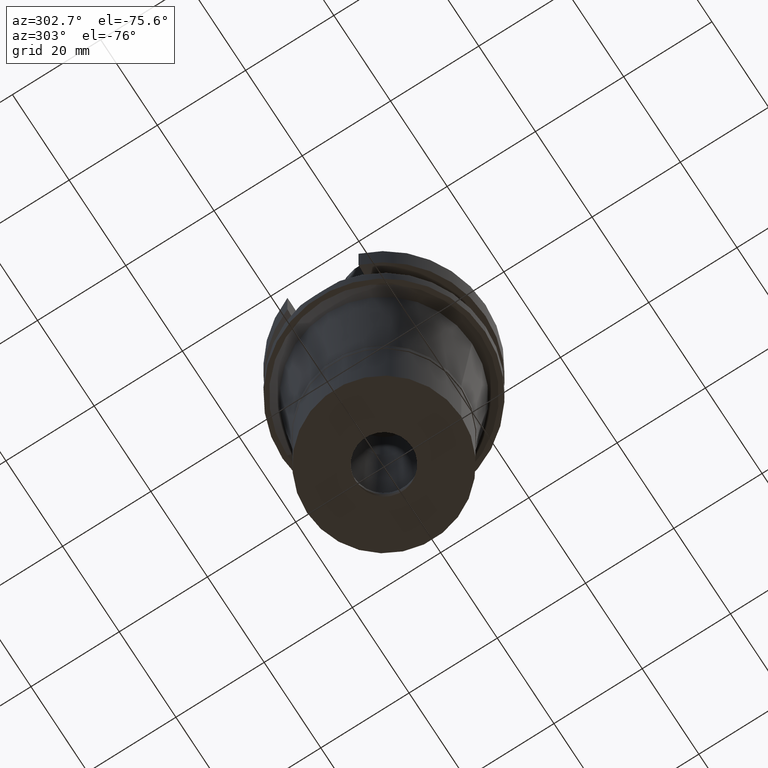
[diagram: clean part render]
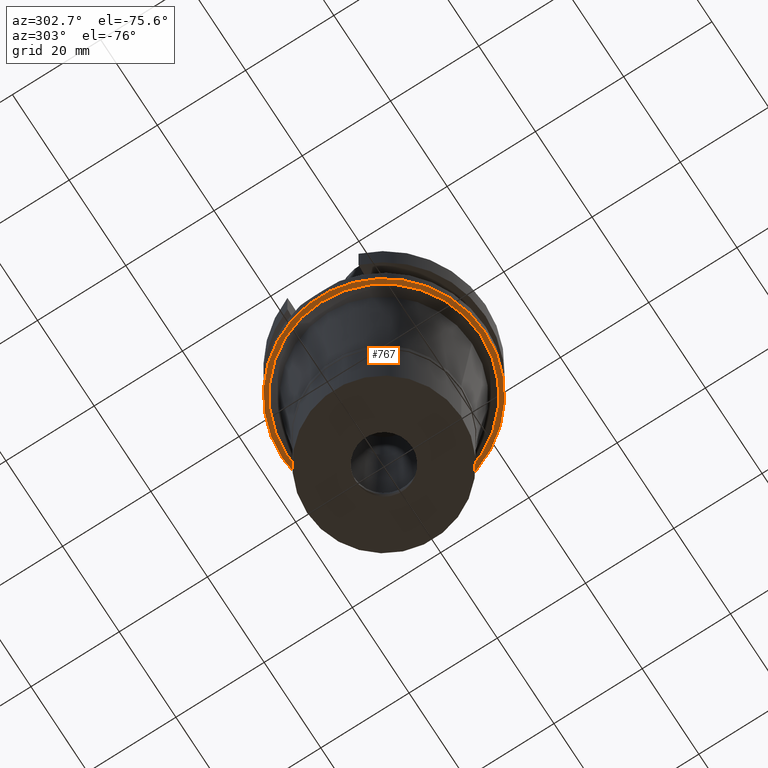
[diagram: same view with one face highlighted and labeled with its STEP entity id]
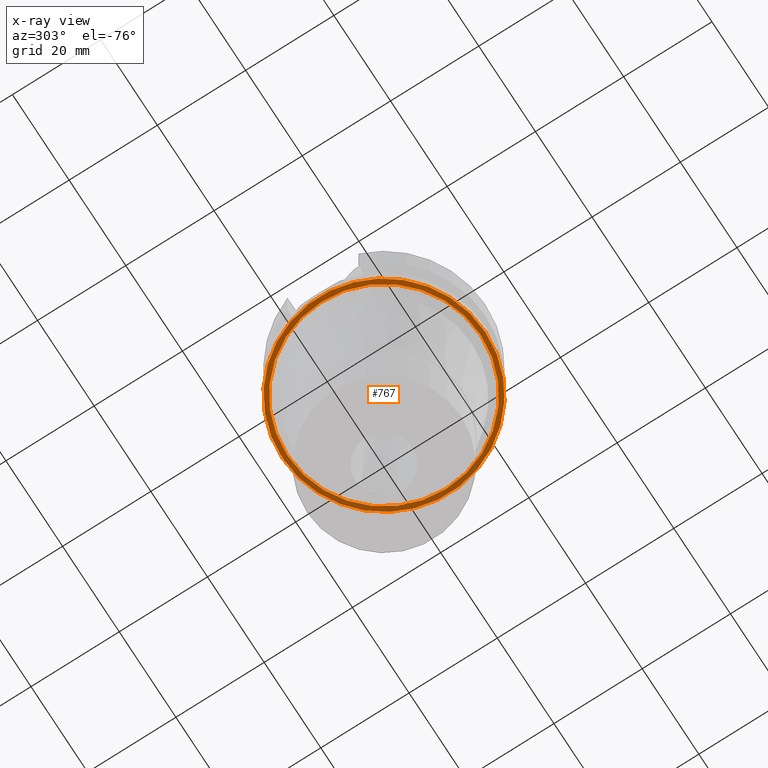
[diagram: x-ray of the same camera — body ghosted, the highlighted face saturated]
A machine part, auxiliary view. The second image highlights one B-rep face of the part: STEP entity #767.
The next image is the same camera in x-ray: the body ghosted, the highlighted face saturated — about 28% of this face is hidden behind the body in this view.
In plain terms, the highlighted planar face has unit normal (0, 0, -1).
Its self-contained STEP definition (entity closure, byte-faithful):
#41 = ORIENTED_EDGE ( 'NONE', *, *, #1301, .F. ) ;
#52 = AXIS2_PLACEMENT_3D ( 'NONE', #1801, #386, #617 ) ;
#94 = AXIS2_PLACEMENT_3D ( 'NONE', #2574, #2507, #198 ) ;
#198 = DIRECTION ( 'NONE',  ( 0.0000000000000000000, -1.000000000000000000, 0.0000000000000000000 ) ) ;
#262 = EDGE_LOOP ( 'NONE', ( #2389, #2730 ) ) ;
#294 = AXIS2_PLACEMENT_3D ( 'NONE', #1337, #2263, #2789 ) ;
#311 = VERTEX_POINT ( 'NONE', #2830 ) ;
#386 = DIRECTION ( 'NONE',  ( 0.0000000000000000000, 0.0000000000000000000, -1.000000000000000000 ) ) ;
#617 = DIRECTION ( 'NONE',  ( 0.0000000000000000000, 1.000000000000000000, 0.0000000000000000000 ) ) ;
#767 = ADVANCED_FACE ( 'NONE', ( #1746, #2700 ), #2470, .T. ) ;
#937 = CARTESIAN_POINT ( 'NONE',  ( 0.0000000000000000000, -23.00000000000000000, -22.00000000000000000 ) ) ;
#963 = EDGE_CURVE ( 'NONE', #1046, #311, #2131, .T. ) ;
#985 = AXIS2_PLACEMENT_3D ( 'NONE', #1403, #2587, #1166 ) ;
#1046 = VERTEX_POINT ( 'NONE', #2411 ) ;
#1166 = DIRECTION ( 'NONE',  ( 0.0000000000000000000, 1.000000000000000000, 0.0000000000000000000 ) ) ;
#1189 = CIRCLE ( 'NONE', #52, 21.92343597966999980 ) ;
#1226 = ORIENTED_EDGE ( 'NONE', *, *, #963, .F. ) ;
#1301 = EDGE_CURVE ( 'NONE', #311, #1046, #1189, .T. ) ;
#1337 = CARTESIAN_POINT ( 'NONE',  ( 0.0000000000000000000, 0.0000000000000000000, -22.00000000000000000 ) ) ;
#1399 = DIRECTION ( 'NONE',  ( 0.0000000000000000000, -1.000000000000000000, 0.0000000000000000000 ) ) ;
#1403 = CARTESIAN_POINT ( 'NONE',  ( 0.0000000000000000000, 0.0000000000000000000, -22.00000000000000000 ) ) ;
#1423 = CARTESIAN_POINT ( 'NONE',  ( 0.0000000000000000000, 0.0000000000000000000, -22.00000000000000000 ) ) ;
#1514 = EDGE_CURVE ( 'NONE', #2928, #2115, #2331, .T. ) ;
#1737 = EDGE_CURVE ( 'NONE', #2115, #2928, #2717, .T. ) ;
#1746 = FACE_OUTER_BOUND ( 'NONE', #262, .T. ) ;
#1801 = CARTESIAN_POINT ( 'NONE',  ( 0.0000000000000000000, 0.0000000000000000000, -22.00000000000000000 ) ) ;
#1813 = EDGE_LOOP ( 'NONE', ( #41, #1226 ) ) ;
#2057 = CARTESIAN_POINT ( 'NONE',  ( 0.0000000000000000000, 23.00000000000000000, -22.00000000000000000 ) ) ;
#2115 = VERTEX_POINT ( 'NONE', #937 ) ;
#2131 = CIRCLE ( 'NONE', #94, 21.92343597966999980 ) ;
#2171 = AXIS2_PLACEMENT_3D ( 'NONE', #1423, #2582, #1399 ) ;
#2263 = DIRECTION ( 'NONE',  ( 0.0000000000000000000, 0.0000000000000000000, 1.000000000000000000 ) ) ;
#2331 = CIRCLE ( 'NONE', #985, 23.00000000000000000 ) ;
#2389 = ORIENTED_EDGE ( 'NONE', *, *, #1514, .F. ) ;
#2411 = CARTESIAN_POINT ( 'NONE',  ( 0.0000000000000000000, -21.92343597966999980, -22.00000000000000000 ) ) ;
#2470 = PLANE ( 'NONE',  #2171 ) ;
#2507 = DIRECTION ( 'NONE',  ( 0.0000000000000000000, 0.0000000000000000000, -1.000000000000000000 ) ) ;
#2574 = CARTESIAN_POINT ( 'NONE',  ( 0.0000000000000000000, 0.0000000000000000000, -22.00000000000000000 ) ) ;
#2582 = DIRECTION ( 'NONE',  ( 0.0000000000000000000, 0.0000000000000000000, -1.000000000000000000 ) ) ;
#2587 = DIRECTION ( 'NONE',  ( 0.0000000000000000000, 0.0000000000000000000, 1.000000000000000000 ) ) ;
#2700 = FACE_BOUND ( 'NONE', #1813, .T. ) ;
#2717 = CIRCLE ( 'NONE', #294, 23.00000000000000000 ) ;
#2730 = ORIENTED_EDGE ( 'NONE', *, *, #1737, .F. ) ;
#2789 = DIRECTION ( 'NONE',  ( 0.0000000000000000000, -1.000000000000000000, 0.0000000000000000000 ) ) ;
#2830 = CARTESIAN_POINT ( 'NONE',  ( 0.0000000000000000000, 21.92343597966999980, -22.00000000000000000 ) ) ;
#2928 = VERTEX_POINT ( 'NONE', #2057 ) ;